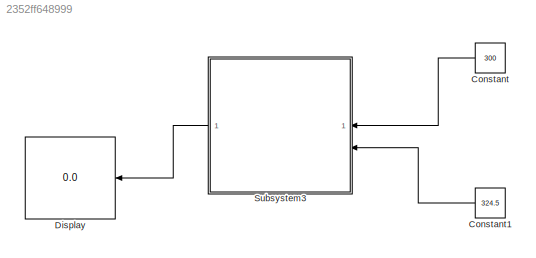
MODEL slx_2352ff648999
KIND model
CONFIG AbsTol = auto
CONFIG EnableMultiTasking = off
CONFIG FixedStep = auto
CONFIG MaxStep = auto
CONFIG MinStep = auto
CONFIG RelTol = 1e-3
CONFIG SampleTimeConstraint = Unconstrained
CONFIG SolverName = VariableStepAuto
CONFIG StartTime = 0.0
CONFIG StopTime = 30
BLOCK [Constant] Constant
  Value = 300
BLOCK [Constant] Constant1
  Value = 324.5
BLOCK [Display] Display
  Decimation = 1
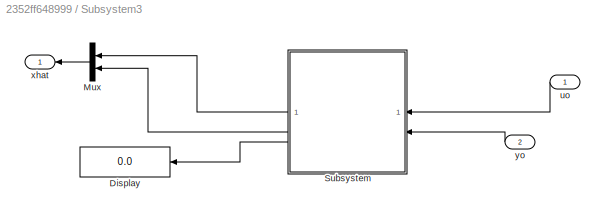
BLOCK [SubSystem] Subsystem3
BLOCK [Display] Subsystem3/Display
  Decimation = 1
BLOCK [Mux] Subsystem3/Mux
  DisplayOption = bar
  Inputs = 2
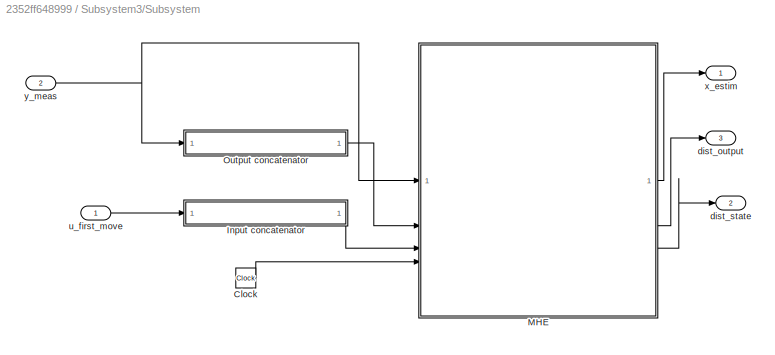
BLOCK [SubSystem] Subsystem3/Subsystem
BLOCK [Clock] Subsystem3/Subsystem/Clock
  Decimation = 20
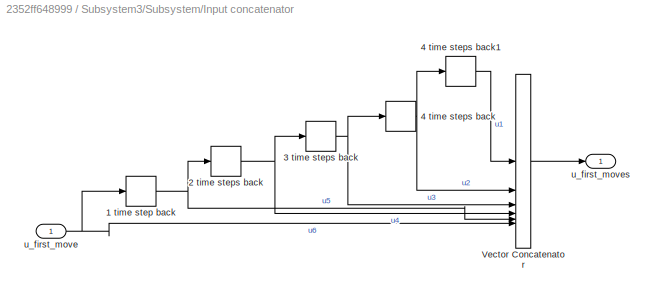
BLOCK [SubSystem] Subsystem3/Subsystem/Input concatenator
BLOCK [TransportDelay] Subsystem3/Subsystem/Input concatenator/1 time step back
  DelayTime = 0.05
  InitialOutput = 300
BLOCK [TransportDelay] Subsystem3/Subsystem/Input concatenator/2 time steps back
  DelayTime = 0.05
  InitialOutput = 300
BLOCK [TransportDelay] Subsystem3/Subsystem/Input concatenator/3 time steps back
  DelayTime = 0.05
  InitialOutput = 300
BLOCK [TransportDelay] Subsystem3/Subsystem/Input concatenator/4 time steps back
  DelayTime = 0.05
  InitialOutput = 300
BLOCK [TransportDelay] Subsystem3/Subsystem/Input concatenator/4 time steps back1
  DelayTime = 0.05
  InitialOutput = 300
BLOCK [Concatenate] Subsystem3/Subsystem/Input concatenator/Vector Concatenator
  Mode = Multidimensional array
  NumInputs = 6
BLOCK [Inport] Subsystem3/Subsystem/Input concatenator/u_first_move
BLOCK [Outport] Subsystem3/Subsystem/Input concatenator/u_first_moves
  PortDimensions = [6,1]
  VectorParamsAs1DForOutWhenUnconnected = off
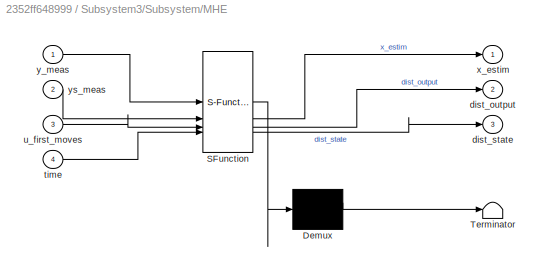
BLOCK [SubSystem] Subsystem3/Subsystem/MHE
  ErrorFcn = Stateflow.Translate.translate
  PermitHierarchicalResolution = ExplicitOnly
  SFBlockType = MATLAB Function
  TreatAsAtomicUnit = on
BLOCK [Demux] Subsystem3/Subsystem/MHE/ Demux 
  Outputs = 1
BLOCK [S-Function] Subsystem3/Subsystem/MHE/ SFunction 
  EnableBusSupport = on
  FunctionName = sf_sfun
  PortCounts = [4 4]
  SFcnIsStateOwnerBlock = off
  SFunctionDeploymentMode = off
  Tag = Stateflow S-Function 5
BLOCK [Terminator] Subsystem3/Subsystem/MHE/ Terminator 
BLOCK [Outport] Subsystem3/Subsystem/MHE/dist_output
  Port = 2
BLOCK [Outport] Subsystem3/Subsystem/MHE/dist_state
  Port = 3
BLOCK [Inport] Subsystem3/Subsystem/MHE/time
  Port = 4
BLOCK [Inport] Subsystem3/Subsystem/MHE/u_first_moves
  Port = 3
BLOCK [Outport] Subsystem3/Subsystem/MHE/x_estim
BLOCK [Inport] Subsystem3/Subsystem/MHE/y_meas
BLOCK [Inport] Subsystem3/Subsystem/MHE/ys_meas
  Port = 2
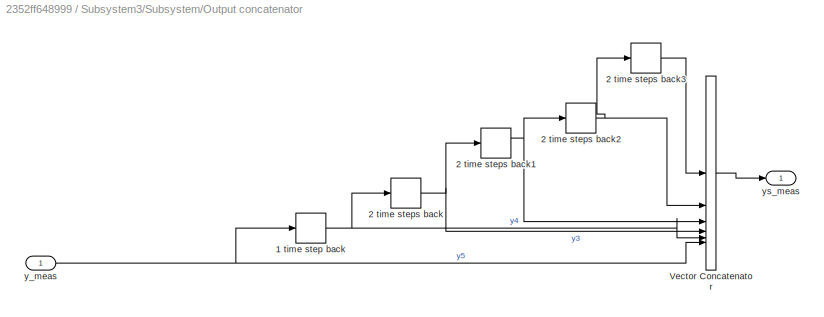
BLOCK [SubSystem] Subsystem3/Subsystem/Output concatenator
BLOCK [TransportDelay] Subsystem3/Subsystem/Output concatenator/1 time step back
  DelayTime = 0.05
  InitialOutput = 324.5
BLOCK [TransportDelay] Subsystem3/Subsystem/Output concatenator/2 time steps back
  DelayTime = 0.05
  InitialOutput = 324.5
BLOCK [TransportDelay] Subsystem3/Subsystem/Output concatenator/2 time steps back1
  DelayTime = 0.05
  InitialOutput = 324.5
BLOCK [TransportDelay] Subsystem3/Subsystem/Output concatenator/2 time steps back2
  DelayTime = 0.05
  InitialOutput = 324.5
BLOCK [TransportDelay] Subsystem3/Subsystem/Output concatenator/2 time steps back3
  DelayTime = 0.05
  InitialOutput = 324.5
BLOCK [Concatenate] Subsystem3/Subsystem/Output concatenator/Vector Concatenator
  Mode = Multidimensional array
  NumInputs = 6
BLOCK [Inport] Subsystem3/Subsystem/Output concatenator/y_meas
BLOCK [Outport] Subsystem3/Subsystem/Output concatenator/ys_meas
  PortDimensions = [6,1]
  VectorParamsAs1DForOutWhenUnconnected = off
BLOCK [Outport] Subsystem3/Subsystem/dist_output
  Port = 3
BLOCK [Outport] Subsystem3/Subsystem/dist_state
  Port = 2
BLOCK [Inport] Subsystem3/Subsystem/u_first_move
  PortDimensions = [1,1]
BLOCK [Outport] Subsystem3/Subsystem/x_estim
BLOCK [Inport] Subsystem3/Subsystem/y_meas
  Port = 2
  PortDimensions = [1,1]
BLOCK [Inport] Subsystem3/uo
BLOCK [Outport] Subsystem3/xhat
BLOCK [Inport] Subsystem3/yo
  Port = 2
LINE Constant1:1 -> Subsystem3:2
LINE Constant:1 -> Subsystem3:1
LINE Subsystem3/Mux:1 -> Subsystem3/xhat:1
LINE Subsystem3/Subsystem/Clock:1 -> Subsystem3/Subsystem/MHE:4
NET Subsystem3/Subsystem/Input concatenator/1 time step back:1 -> Subsystem3/Subsystem/Input concatenator/2 time steps back:1, Subsystem3/Subsystem/Input concatenator/Vector Concatenator:5
NET Subsystem3/Subsystem/Input concatenator/2 time steps back:1 -> Subsystem3/Subsystem/Input concatenator/3 time steps back:1, Subsystem3/Subsystem/Input concatenator/Vector Concatenator:4
NET Subsystem3/Subsystem/Input concatenator/3 time steps back:1 -> Subsystem3/Subsystem/Input concatenator/4 time steps back:1, Subsystem3/Subsystem/Input concatenator/Vector Concatenator:3
LINE Subsystem3/Subsystem/Input concatenator/4 time steps back1:1 -> Subsystem3/Subsystem/Input concatenator/Vector Concatenator:1
NET Subsystem3/Subsystem/Input concatenator/4 time steps back:1 -> Subsystem3/Subsystem/Input concatenator/4 time steps back1:1, Subsystem3/Subsystem/Input concatenator/Vector Concatenator:2
LINE Subsystem3/Subsystem/Input concatenator/Vector Concatenator:1 -> Subsystem3/Subsystem/Input concatenator/u_first_moves:1
NET Subsystem3/Subsystem/Input concatenator/u_first_move:1 -> Subsystem3/Subsystem/Input concatenator/1 time step back:1, Subsystem3/Subsystem/Input concatenator/Vector Concatenator:6
LINE Subsystem3/Subsystem/Input concatenator:1 -> Subsystem3/Subsystem/MHE:3
LINE Subsystem3/Subsystem/MHE:1 -> Subsystem3/Subsystem/x_estim:1
LINE Subsystem3/Subsystem/MHE:2 -> Subsystem3/Subsystem/dist_output:1
LINE Subsystem3/Subsystem/MHE:3 -> Subsystem3/Subsystem/dist_state:1
NET Subsystem3/Subsystem/Output concatenator/1 time step back:1 -> Subsystem3/Subsystem/Output concatenator/2 time steps back:1, Subsystem3/Subsystem/Output concatenator/Vector Concatenator:5
NET Subsystem3/Subsystem/Output concatenator/2 time steps back1:1 -> Subsystem3/Subsystem/Output concatenator/2 time steps back2:1, Subsystem3/Subsystem/Output concatenator/Vector Concatenator:3
NET Subsystem3/Subsystem/Output concatenator/2 time steps back2:1 -> Subsystem3/Subsystem/Output concatenator/2 time steps back3:1, Subsystem3/Subsystem/Output concatenator/Vector Concatenator:2
LINE Subsystem3/Subsystem/Output concatenator/2 time steps back3:1 -> Subsystem3/Subsystem/Output concatenator/Vector Concatenator:1
NET Subsystem3/Subsystem/Output concatenator/2 time steps back:1 -> Subsystem3/Subsystem/Output concatenator/2 time steps back1:1, Subsystem3/Subsystem/Output concatenator/Vector Concatenator:4
LINE Subsystem3/Subsystem/Output concatenator/Vector Concatenator:1 -> Subsystem3/Subsystem/Output concatenator/ys_meas:1
NET Subsystem3/Subsystem/Output concatenator/y_meas:1 -> Subsystem3/Subsystem/Output concatenator/1 time step back:1, Subsystem3/Subsystem/Output concatenator/Vector Concatenator:6
LINE Subsystem3/Subsystem/Output concatenator:1 -> Subsystem3/Subsystem/MHE:2
LINE Subsystem3/Subsystem/u_first_move:1 -> Subsystem3/Subsystem/Input concatenator:1
NET Subsystem3/Subsystem/y_meas:1 -> Subsystem3/Subsystem/MHE:1, Subsystem3/Subsystem/Output concatenator:1
LINE Subsystem3/Subsystem:1 -> Subsystem3/Mux:1
LINE Subsystem3/Subsystem:2 -> Subsystem3/Mux:2
LINE Subsystem3/Subsystem:3 -> Subsystem3/Display:1
LINE Subsystem3/uo:1 -> Subsystem3/Subsystem:1
LINE Subsystem3/yo:1 -> Subsystem3/Subsystem:2
LINE Subsystem3:1 -> Display:1
note: NET lines group one-source signal fan-out (src -> all destinations, sorted); 1:1 wires keep LINE
CHART Subsystem3/Subsystem/MHE states=1 transitions=1
  STATE_LABEL 'eML_blk_kernel()'
  STATE_LABEL "SCRIPT:\nfunction [x_estim,dist_output,dist_state] = MHE_4_tanks(y_meas,ys_meas,u_first_moves,time)\n\ncoder.extrinsic('MHE_compute');\n\nN_MHE=6  ;\n% Ts=2 ;\n\n\nif time < 0.5\n    \n    x_estim =  [0.877;324.5]  ;\n   % x_estim = [17;17;17];\n    %x_estim = [5.898;1.8];\n    dist_output = 0;\n    dist_state = [0;0];\nelse\n    \n    [x_estim,dist_state,dist_output] = MHE_compute(ys_meas,u_first_moves,N_MHE,y_mea...<+83ch>"
CHART  states=0 transitions=0
